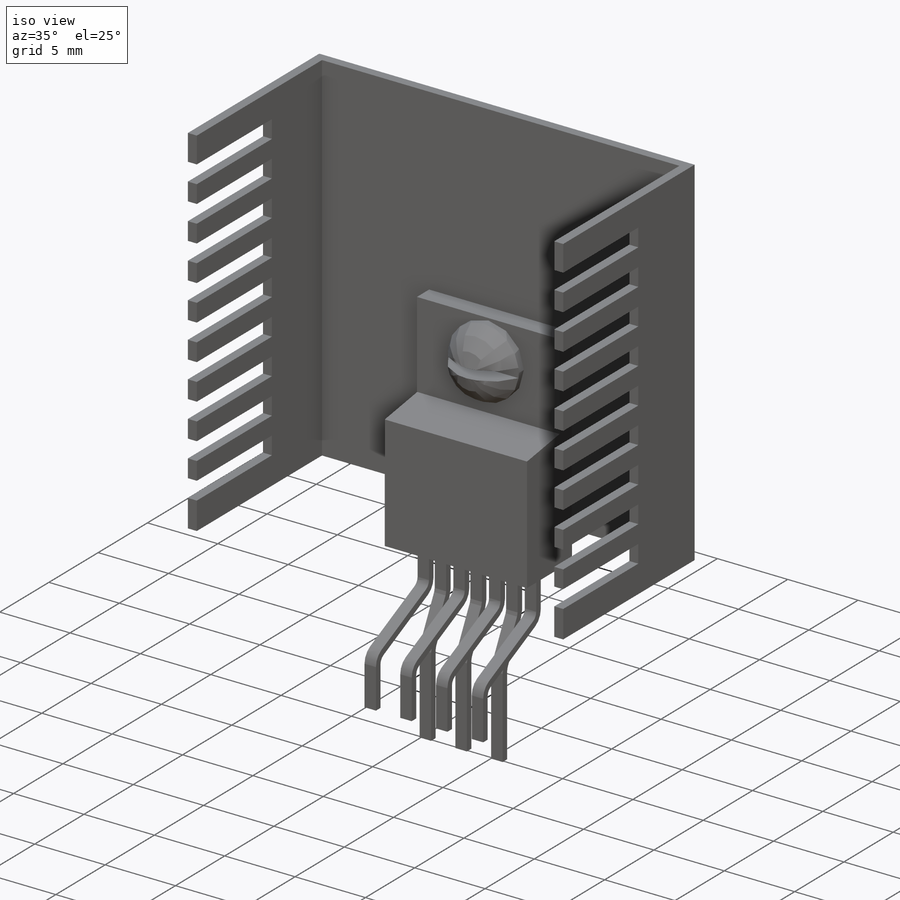
[diagram: iso view]
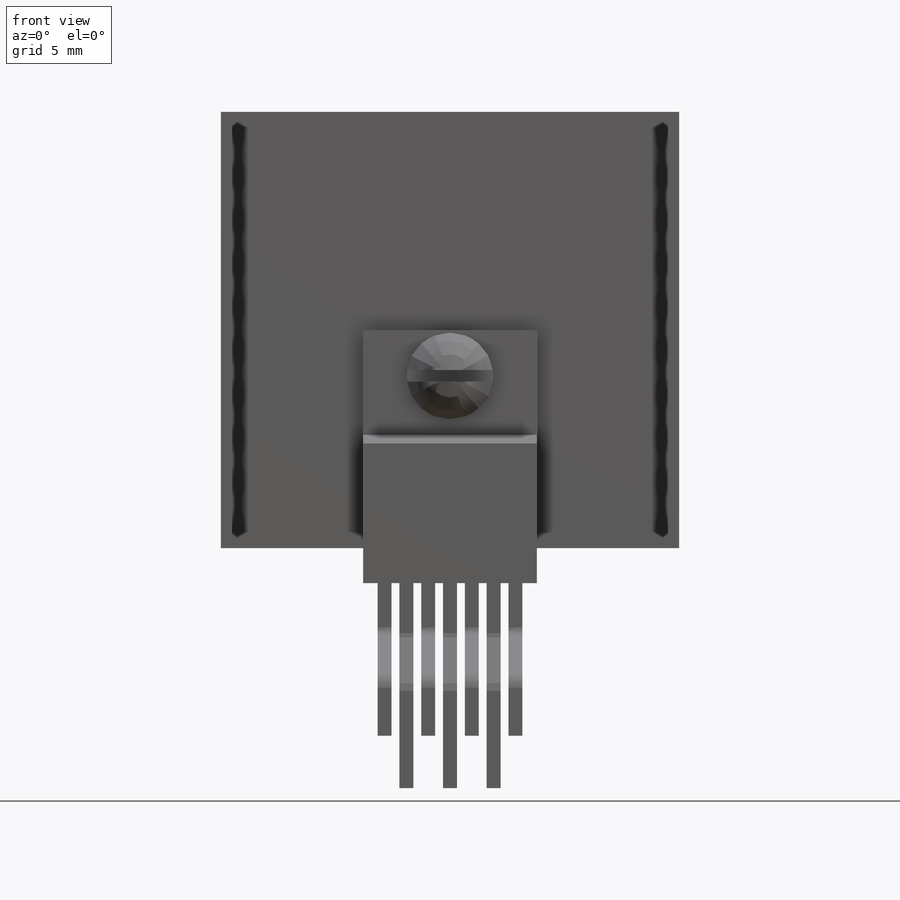
[diagram: front view]
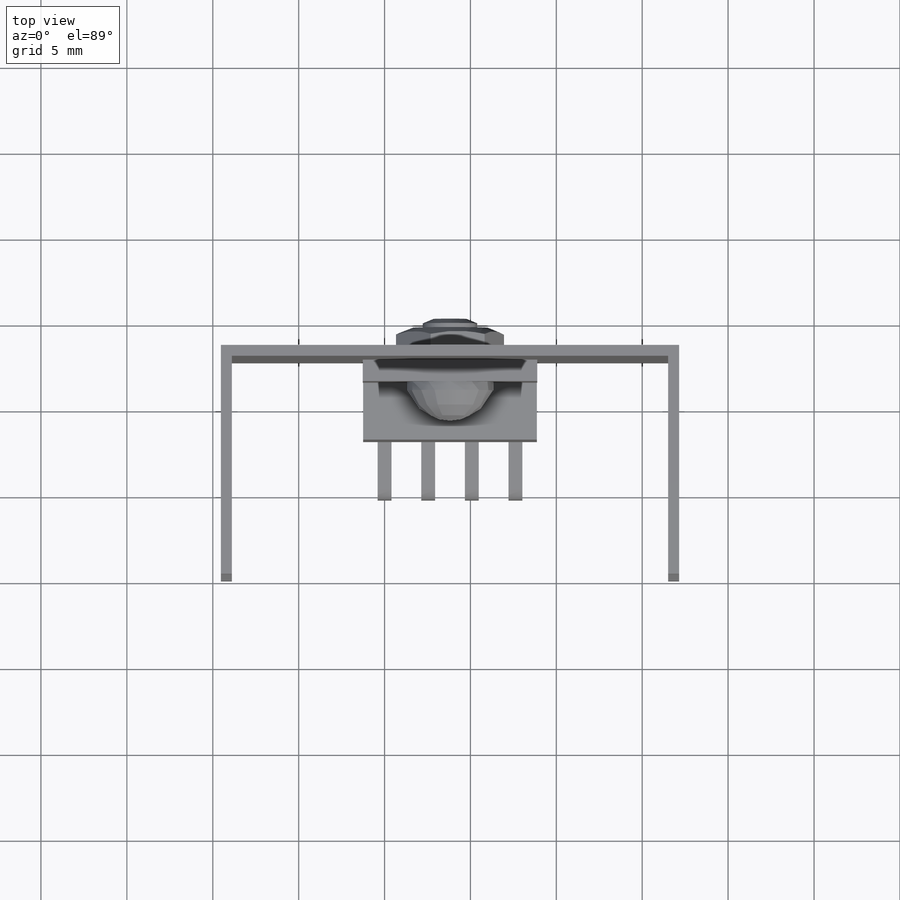
[diagram: top view]
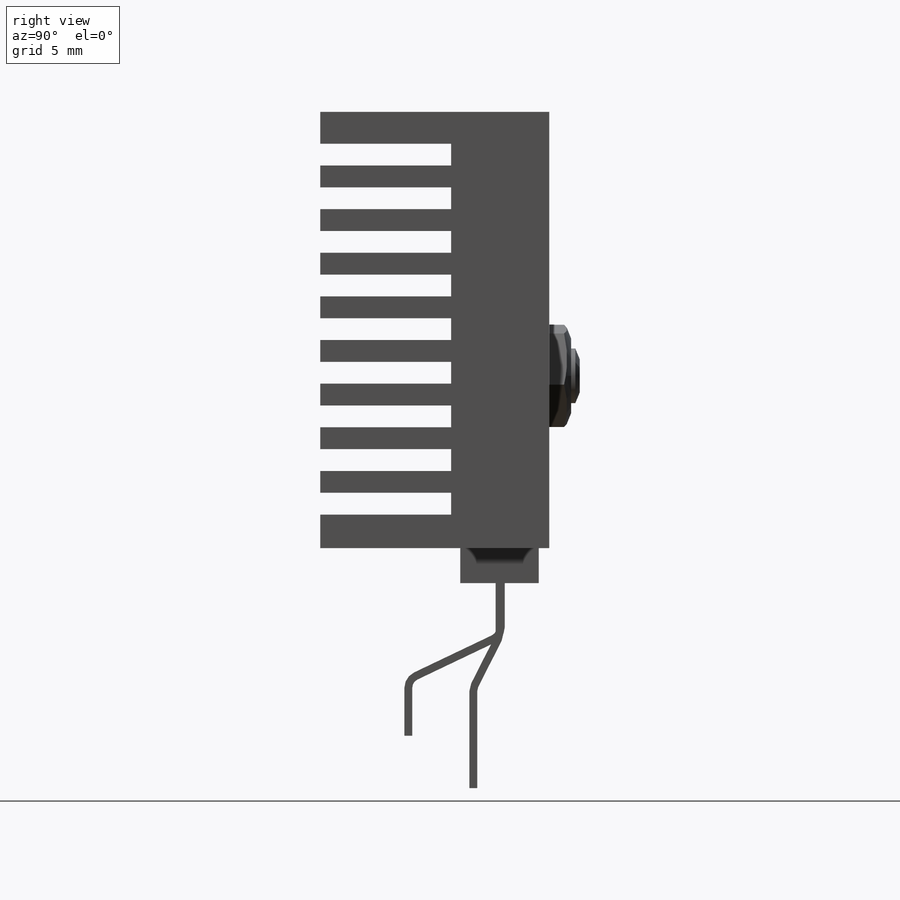
[diagram: right view]
SOLIDWORKS PART (.sldprt)
format: sldprt  version: not decoded by parser v0  size: 596,992 bytes
history: native  units: mm
features: sketch x16, cut_extrude x9, plane x7, extrude x4, pattern_linear x2, material x1, dome x1, cut_revolve x1 (+12 scaffold rows collapsed)
feature tree (53):
  scaffold x12  (default folders/planes/origin — collapsed)
  material  "Material <not specified>"
  plane  "Plane2"  Offset=1.397mm
  plane  "Plane3"  Offset=6.35mm
  plane  "Plane4"  Offset=2.54mm
  sketch  "Sketch2"  dims[c1.D1=10.16mm c1.D2=4.572mm c1.D3=7.62mm c1.D4=7.5946mm c2.D3=1.27mm]
  extrude  "Base-Extrude"  Depth=14.732mm
  sketch  "Sketch3"  dims[D1=1.27mm D2=6.096mm D3=6.604mm]
  cut_extrude  "Cut-Extrude1"  [1 undecoded]
  sketch  "Sketch5"
  cut_extrude  "Cut-Extrude4"  Depth=0.0254mm
  sketch  "Sketch6"
  cut_extrude  "Cut-Extrude5"  Depth=0.0254mm
  sketch  "Sketch7"  dims[D1=1.2446mm D2=3.302mm D3=1.2446mm]
  cut_extrude  "Cut-Extrude6"  Depth=0.0254mm
  sketch  "Sketch9"  dims[c1.D1=7.62mm c1.D2=5.3848mm c1.D3=2.5654mm c1.D4=6.096mm c1.D5=2.54mm c2.D1=0.8128mm c2.D5=0.2286mm c2.D6=0.2286mm c2.D7=5.0mm]
  pattern_linear  "LPattern2"  Count1=4 Count2=1 Spacing1=2.54mm Spacing2=50mm
  plane  "Plane5"  Offset=1.27mm
  sketch  "Sketch10"  dims[D5=0.762mm D1=1.524mm D2=11.938mm D3=5.842mm D4=3.0988mm]
  cut_extrude  "Boss-Extrude-Thin2"  Depth=0.8128mm
  pattern_linear  "LPattern3"  Count1=3 Count2=1 Spacing1=2.54mm Spacing2=50mm
  sketch  "Sketch11"  dims[D1=25.4mm D2=8.89mm D3=12.7mm]
  cut_extrude  "Boss-Extrude-Thin3"  Depth=12.7mm
  sketch  "Sketch4"  dims[D1=3.81mm D2=2.667mm]
  cut_extrude  "Cut-Extrude2"  Depth=14.732mm
  sketch  "Sketch12"  dims[D1=7.62mm D2=1.8542mm D3=1.27mm D4=1.27mm D5=1.27mm D6=1.27mm D7=1.27mm D8=1.27mm D9=1.27mm D10=1.27mm D11=1.27mm]
  cut_extrude  "Cut-Extrude7"  [1 undecoded]
  sketch  "Sketch13"  dims[D1=5.0292mm]
  extrude  "Boss-Extrude1"  Depth=0.508mm
  dome  "Dome1"
  plane  "Plane6"  Offset=1.016mm
  sketch  "Sketch14"  dims[c1.D1=0.381mm c1.D2=~0.172232mm c2.D1=0.6604mm]
  cut_extrude  "Cut-Extrude8"  Depth=0.508mm
  sketch  "Sketch15"  dims[D1=5.5118mm]
  extrude  "Boss-Extrude2"  Depth=1.27mm
  sketch  "Sketch16"  dims[D1=3.175mm]
  extrude  "Boss-Extrude3"  Depth=0.508mm
  plane  "Plane7"  Offset=13.335mm
  sketch  "Sketch18"
  cut_revolve  "Cut-Revolve1"  Angle=360deg
  plane  "Plane8"  Offset=6.35mm
  sketch  "Component_Outline"
decode coverage: 26 of 33 modeling features carry decoded parameters
note: ~ marks probable driven/reference dimensions
note: 2 parameter values undecoded
note: suppression state not decoded; provenance and decode notes live in map.json
